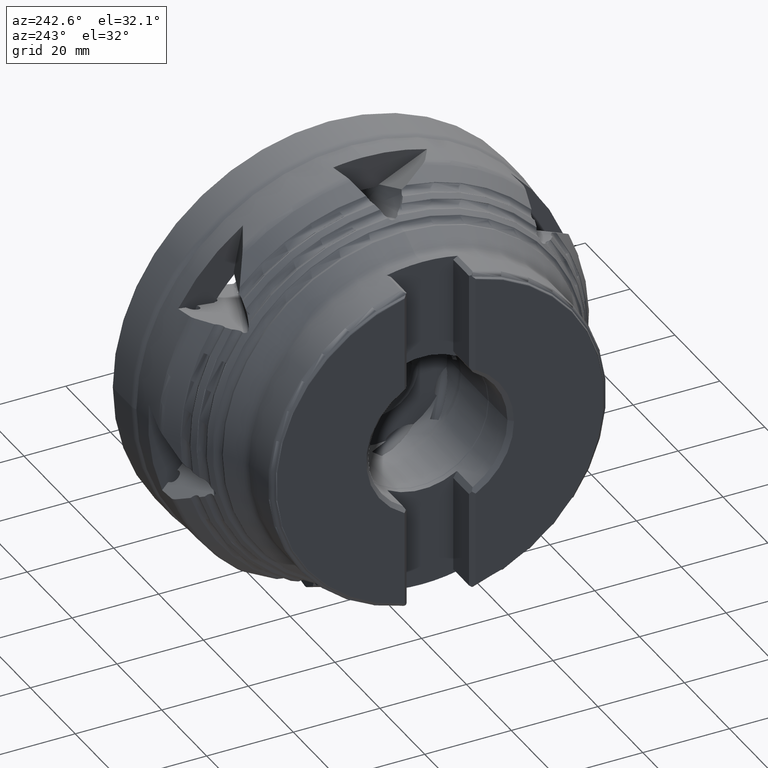
[diagram: clean part render]
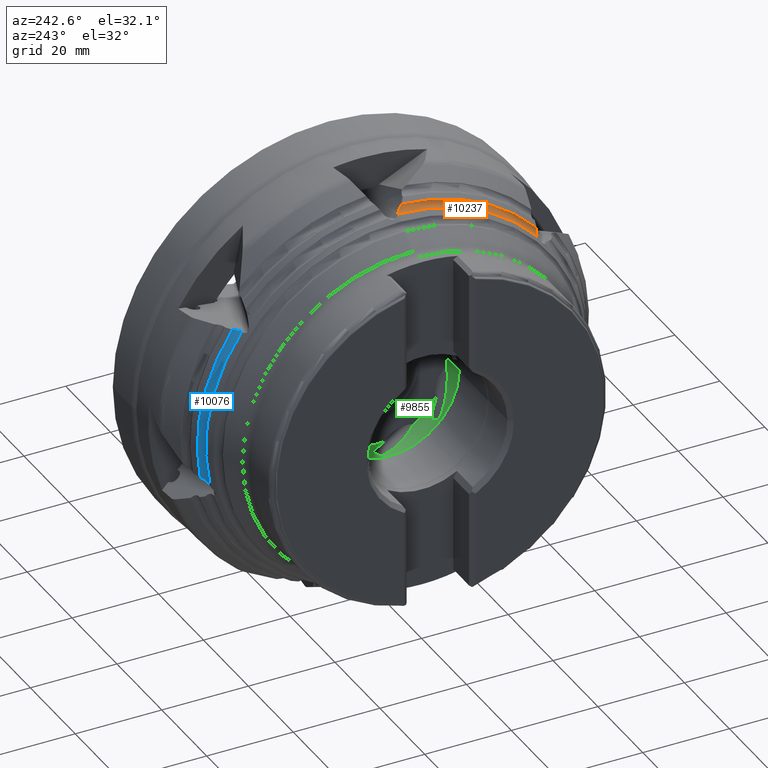
[diagram: same view with three faces highlighted in distinct colors, each labeled with its STEP entity id]
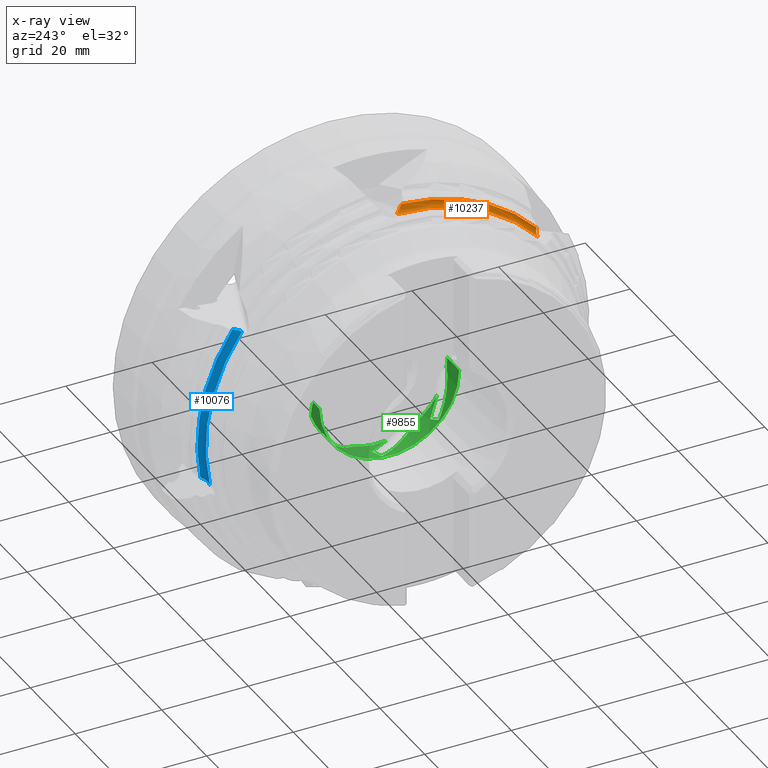
[diagram: x-ray of the same camera — body ghosted, the three highlighted faces saturated]
A machine part, auxiliary view with three faces highlighted in distinct colors.
The next image is the same camera in x-ray (body ghosted, the three faces saturated) — at least one of them is partly hidden behind the body in this view.
Their STEP definitions:

[orange] entity #10237 — the highlighted toroidal blend (fillet) surface has major radius 45.3255 mm and minor (blend) radius 1.5 mm.
#412 = DIRECTION ( 'NONE',  ( 1.000000000000000000, -0.0000000000000000000, -0.0000000000000000000 ) ) ;
#423 = CARTESIAN_POINT ( 'NONE',  ( -28.31936529679574500, 0.0000000000000000000, 0.0000000000000000000 ) ) ;
#425 = DIRECTION ( 'NONE',  ( 0.0000000000000000000, 0.0000000000000000000, -1.000000000000000000 ) ) ;
#720 = AXIS2_PLACEMENT_3D ( 'NONE', #423, #412, #425 ) ;
#916 = FACE_OUTER_BOUND ( 'NONE', #12200, .T. ) ;
#923 = TOROIDAL_SURFACE ( 'NONE', #720, 45.32546180612555300, 1.499999999999990500 ) ;
#1536 = CIRCLE ( 'NONE', #5640, 44.99870212552711000 ) ;
#1542 = CIRCLE ( 'NONE', #5642, 43.82546180612556700 ) ;
#3446 = B_SPLINE_CURVE_WITH_KNOTS ( 'NONE', 3,
 ( #5403, #5408, #5409, #5410, #5411, #5412, #5413, #5414, #5415, #5416 ),
 .UNSPECIFIED., .F., .F.,
 ( 4, 2, 2, 2, 4 ),
 ( 0.0004957884310535682100, 0.001153304637503894300, 0.001810820843954220200, 0.002468337050404546100, 0.003125853256854872100 ),
 .UNSPECIFIED. ) ;
#4848 = ORIENTED_EDGE ( 'NONE', *, *, #13280, .F. ) ;
#4888 = ORIENTED_EDGE ( 'NONE', *, *, #13119, .T. ) ;
#4889 = ORIENTED_EDGE ( 'NONE', *, *, #13125, .F. ) ;
#4920 = ORIENTED_EDGE ( 'NONE', *, *, #13113, .F. ) ;
#5338 = CARTESIAN_POINT ( 'NONE',  ( -26.85538848306705600, 0.0000000000000000000, 0.0000000000000000000 ) ) ;
#5340 = DIRECTION ( 'NONE',  ( 1.000000000000000000, -0.0000000000000000000, -0.0000000000000000000 ) ) ;
#5341 = DIRECTION ( 'NONE',  ( 0.0000000000000000000, 0.0000000000000000000, -1.000000000000000000 ) ) ;
#5372 = CARTESIAN_POINT ( 'NONE',  ( -28.31936529679574500, 0.0000000000000000000, 0.0000000000000000000 ) ) ;
#5374 = DIRECTION ( 'NONE',  ( 1.000000000000000000, -0.0000000000000000000, -0.0000000000000000000 ) ) ;
#5375 = DIRECTION ( 'NONE',  ( 0.0000000000000000000, 0.0000000000000000000, -1.000000000000000000 ) ) ;
#5403 = CARTESIAN_POINT ( 'NONE',  ( -28.31936529679584400, -0.4720116903869269200, 43.82291988770612100 ) ) ;
#5408 = CARTESIAN_POINT ( 'NONE',  ( -28.12871589166533000, -0.5858829625670970400, 43.82169339317299300 ) ) ;
#5409 = CARTESIAN_POINT ( 'NONE',  ( -27.95732435731268200, -0.7220073533651217800, 43.85442177337574800 ) ) ;
#5410 = CARTESIAN_POINT ( 'NONE',  ( -27.64188961573086100, -1.010879550474835400, 43.96526277893875800 ) ) ;
#5411 = CARTESIAN_POINT ( 'NONE',  ( -27.50212087691758700, -1.160378509105190800, 44.04229642295632600 ) ) ;
#5412 = CARTESIAN_POINT ( 'NONE',  ( -27.25103905829562100, -1.464389909434185200, 44.23624329095280000 ) ) ;
#5413 = CARTESIAN_POINT ( 'NONE',  ( -27.14096194475373700, -1.618344798882395400, 44.35349320857236700 ) ) ;
#5414 = CARTESIAN_POINT ( 'NONE',  ( -26.96406604444739900, -1.914549612997074700, 44.62097086623352000 ) ) ;
#5415 = CARTESIAN_POINT ( 'NONE',  ( -26.89490856015770600, -2.060469067801497600, 44.77443889058148600 ) ) ;
#5416 = CARTESIAN_POINT ( 'NONE',  ( -26.85538848306712700, -2.197100814788794900, 44.94503243954265100 ) ) ;
#5640 = AXIS2_PLACEMENT_3D ( 'NONE', #5338, #5340, #5341 ) ;
#5642 = AXIS2_PLACEMENT_3D ( 'NONE', #5372, #5374, #5375 ) ;
#6142 = CARTESIAN_POINT ( 'NONE',  ( -26.85538848306713400, -33.38349596373743800, 30.17325620845409900 ) ) ;
#6150 = CARTESIAN_POINT ( 'NONE',  ( -26.89166129506544000, -33.31104260516921300, 30.01105600278767600 ) ) ;
#6151 = CARTESIAN_POINT ( 'NONE',  ( -26.95319103494595600, -33.24609233546073700, 29.85625505978013900 ) ) ;
#6152 = CARTESIAN_POINT ( 'NONE',  ( -27.12593607631110300, -33.13095191198110700, 29.56120904225302200 ) ) ;
#6153 = CARTESIAN_POINT ( 'NONE',  ( -27.23506569506519200, -33.08264812950709200, 29.42555663905123400 ) ) ;
#6154 = CARTESIAN_POINT ( 'NONE',  ( -27.49360709679314900, -33.00837526324834700, 29.18758237238945700 ) ) ;
#6155 = CARTESIAN_POINT ( 'NONE',  ( -27.64295106517014500, -32.98275927974478300, 29.08601569528715200 ) ) ;
#6156 = CARTESIAN_POINT ( 'NONE',  ( -27.88523972085051700, -32.96546491501452200, 28.97162299133077600 ) ) ;
#6157 = CARTESIAN_POINT ( 'NONE',  ( -27.97069403435437000, -32.96315223725356000, 28.93914085396943700 ) ) ;
#6158 = CARTESIAN_POINT ( 'NONE',  ( -28.14344077869619200, -32.96608341341538300, 28.88927248780806800 ) ) ;
#6159 = CARTESIAN_POINT ( 'NONE',  ( -28.23086353245711100, -32.97121688145441700, 28.87161482699417500 ) ) ;
#6160 = CARTESIAN_POINT ( 'NONE',  ( -28.31936529679456900, -32.98012179098426300, 28.86143913895451600 ) ) ;
#7104 = B_SPLINE_CURVE_WITH_KNOTS ( 'NONE', 3,
 ( #6142, #6150, #6151, #6152, #6153, #6154, #6155, #6156, #6157, #6158, #6159, #6160 ),
 .UNSPECIFIED., .F., .F.,
 ( 4, 2, 2, 2, 2, 4 ),
 ( 9.870091650042058700E-007, 0.0005373037065506780300, 0.001073620403936352000, 0.001609937101322025900, 0.001878095450014867600, 0.002146253798707709200 ),
 .UNSPECIFIED. ) ;
#9583 = VERTEX_POINT ( 'NONE', #15563 ) ;
#9594 = VERTEX_POINT ( 'NONE', #15574 ) ;
#9599 = VERTEX_POINT ( 'NONE', #15579 ) ;
#9627 = VERTEX_POINT ( 'NONE', #15607 ) ;
#10237 = ADVANCED_FACE ( 'NONE', ( #916 ), #923, .F. ) ;
#12200 = EDGE_LOOP ( 'NONE', ( #4889, #4888, #4848, #4920 ) ) ;
#13113 = EDGE_CURVE ( 'NONE', #9583, #9599, #1536, .T. ) ;
#13119 = EDGE_CURVE ( 'NONE', #9627, #9594, #1542, .T. ) ;
#13125 = EDGE_CURVE ( 'NONE', #9627, #9583, #3446, .T. ) ;
#13280 = EDGE_CURVE ( 'NONE', #9599, #9594, #7104, .T. ) ;
#15563 = CARTESIAN_POINT ( 'NONE',  ( -26.85538848306712700, -2.197100814788794900, 44.94503243954265100 ) ) ;
#15574 = CARTESIAN_POINT ( 'NONE',  ( -28.31936529679456900, -32.98012179098426300, 28.86143913895451600 ) ) ;
#15579 = CARTESIAN_POINT ( 'NONE',  ( -26.85538848306713400, -33.38349596373743800, 30.17325620845409900 ) ) ;
#15607 = CARTESIAN_POINT ( 'NONE',  ( -28.31936529679584400, -0.4720116903869269200, 43.82291988770612100 ) ) ;

[blue] entity #10076 — the highlighted toroidal blend (fillet) surface has major radius 45.3255 mm and minor (blend) radius 1.5 mm.
#1537 = CIRCLE ( 'NONE', #5636, 44.99870212552711000 ) ;
#1538 = CIRCLE ( 'NONE', #5637, 43.82546180612556700 ) ;
#3441 = B_SPLINE_CURVE_WITH_KNOTS ( 'NONE', 3,
 ( #5300, #5351, #5352, #5353, #5354, #5355, #5356, #5357, #5358, #5359, #5360, #5361 ),
 .UNSPECIFIED., .F., .F.,
 ( 4, 2, 2, 2, 2, 4 ),
 ( 9.870091650047060500E-007, 0.0005373037065506840000, 0.001073620403936363300, 0.001609937101322042400, 0.001878095450014877300, 0.002146253798707712300 ),
 .UNSPECIFIED. ) ;
#3444 = B_SPLINE_CURVE_WITH_KNOTS ( 'NONE', 3,
 ( #5362, #5388, #5389, #5390, #5391, #5392, #5393, #5394, #5395, #5396 ),
 .UNSPECIFIED., .F., .F.,
 ( 4, 2, 2, 2, 4 ),
 ( 0.0004957884310556829500, 0.001153304637507110400, 0.001810820843958537700, 0.002468337050409965000, 0.003125853256861392500 ),
 .UNSPECIFIED. ) ;
#4855 = ORIENTED_EDGE ( 'NONE', *, *, #13115, .T. ) ;
#4922 = ORIENTED_EDGE ( 'NONE', *, *, #13114, .F. ) ;
#4969 = ORIENTED_EDGE ( 'NONE', *, *, #13121, .F. ) ;
#4975 = ORIENTED_EDGE ( 'NONE', *, *, #13117, .F. ) ;
#5300 = CARTESIAN_POINT ( 'NONE',  ( -26.85538848306713400, 36.84527637961322500, 25.83232086924834500 ) ) ;
#5342 = CARTESIAN_POINT ( 'NONE',  ( -26.85538848306705600, 0.0000000000000000000, 0.0000000000000000000 ) ) ;
#5343 = DIRECTION ( 'NONE',  ( 1.000000000000000000, -0.0000000000000000000, -0.0000000000000000000 ) ) ;
#5344 = DIRECTION ( 'NONE',  ( 0.0000000000000000000, 0.0000000000000000000, -1.000000000000000000 ) ) ;
#5345 = CARTESIAN_POINT ( 'NONE',  ( -28.31936529679574500, 0.0000000000000000000, 0.0000000000000000000 ) ) ;
#5346 = DIRECTION ( 'NONE',  ( 1.000000000000000000, -0.0000000000000000000, -0.0000000000000000000 ) ) ;
#5347 = DIRECTION ( 'NONE',  ( 0.0000000000000000000, 0.0000000000000000000, -1.000000000000000000 ) ) ;
#5351 = CARTESIAN_POINT ( 'NONE',  ( -26.89166129506544700, 36.67102048273052600, 25.79777700890167200 ) ) ;
#5352 = CARTESIAN_POINT ( 'NONE',  ( -26.95319103494595200, 36.50564792788416900, 25.76890162847449200 ) ) ;
#5353 = CARTESIAN_POINT ( 'NONE',  ( -27.12593607631110300, 36.19237817545007400, 25.72230193118398100 ) ) ;
#5354 = CARTESIAN_POINT ( 'NONE',  ( -27.23506569506519200, 36.04937825842436900, 25.70539472483999100 ) ) ;
#5355 = CARTESIAN_POINT ( 'NONE',  ( -27.49360709679315200, 35.80084323590730100, 25.68593829048175400 ) ) ;
#5356 = CARTESIAN_POINT ( 'NONE',  ( -27.64295106517013800, 35.69612295487927200, 25.68356526501377600 ) ) ;
#5357 = CARTESIAN_POINT ( 'NONE',  ( -27.88523972085051000, 35.58074995665028000, 25.69215927743694600 ) ) ;
#5358 = CARTESIAN_POINT ( 'NONE',  ( -27.97069403435437400, 35.54856759507408300, 25.69713253887844600 ) ) ;
#5359 = CARTESIAN_POINT ( 'NONE',  ( -28.14344077869619200, 35.50060178102558700, 25.71108697974725000 ) ) ;
#5360 = CARTESIAN_POINT ( 'NONE',  ( -28.23086353245712100, 35.48452913873676100, 25.72002094020057300 ) ) ;
#5361 = CARTESIAN_POINT ( 'NONE',  ( -28.31936529679456900, 35.47659010522662000, 25.73096688866290900 ) ) ;
#5362 = CARTESIAN_POINT ( 'NONE',  ( -28.31936529679584400, 42.82922027401579600, -9.291339690270959300 ) ) ;
#5388 = CARTESIAN_POINT ( 'NONE',  ( -28.12871589166533700, 42.85336327209762400, -9.180050487917860400 ) ) ;
#5389 = CARTESIAN_POINT ( 'NONE',  ( -27.95732435731266500, 42.91556161005242100, -9.054621769529704900 ) ) ;
#5390 = CARTESIAN_POINT ( 'NONE',  ( -27.64188961573086100, 43.08790371128498000, -8.797656645592706300 ) ) ;
#5391 = CARTESIAN_POINT ( 'NONE',  ( -27.50212087691758700, 43.19627260891467600, -8.669047536394696600 ) ) ;
#5392 = CARTESIAN_POINT ( 'NONE',  ( -27.25103905829561400, 43.45300572473929200, -8.415815574796955200 ) ) ;
#5393 = CARTESIAN_POINT ( 'NONE',  ( -27.14096194475374100, 43.60157412791474500, -8.291811217032035900 ) ) ;
#5394 = CARTESIAN_POINT ( 'NONE',  ( -26.96406604444739600, 43.92825733413280200, -8.062552254224217000 ) ) ;
#5395 = CARTESIAN_POINT ( 'NONE',  ( -26.89490856015770600, 44.11034772806249300, -7.954441152915369400 ) ) ;
#5396 = CARTESIAN_POINT ( 'NONE',  ( -26.85538848306713400, 44.30706756453061200, -7.859195684929050100 ) ) ;
#5636 = AXIS2_PLACEMENT_3D ( 'NONE', #5342, #5343, #5344 ) ;
#5637 = AXIS2_PLACEMENT_3D ( 'NONE', #5345, #5346, #5347 ) ;
#9570 = VERTEX_POINT ( 'NONE', #15550 ) ;
#9592 = VERTEX_POINT ( 'NONE', #15572 ) ;
#9597 = VERTEX_POINT ( 'NONE', #15577 ) ;
#9633 = VERTEX_POINT ( 'NONE', #15613 ) ;
#10076 = ADVANCED_FACE ( 'NONE', ( #14619 ), #14624, .F. ) ;
#12198 = EDGE_LOOP ( 'NONE', ( #4969, #4855, #4975, #4922 ) ) ;
#13114 = EDGE_CURVE ( 'NONE', #9597, #9570, #1537, .T. ) ;
#13115 = EDGE_CURVE ( 'NONE', #9633, #9592, #1538, .T. ) ;
#13117 = EDGE_CURVE ( 'NONE', #9570, #9592, #3441, .T. ) ;
#13121 = EDGE_CURVE ( 'NONE', #9633, #9597, #3444, .T. ) ;
#14619 = FACE_OUTER_BOUND ( 'NONE', #12198, .T. ) ;
#14624 = TOROIDAL_SURFACE ( 'NONE', #16364, 45.32546180612555300, 1.499999999999990500 ) ;
#15550 = CARTESIAN_POINT ( 'NONE',  ( -26.85538848306713400, 36.84527637961322500, 25.83232086924834500 ) ) ;
#15572 = CARTESIAN_POINT ( 'NONE',  ( -28.31936529679456900, 35.47659010522662000, 25.73096688866290900 ) ) ;
#15577 = CARTESIAN_POINT ( 'NONE',  ( -26.85538848306713400, 44.30706756453061200, -7.859195684929050100 ) ) ;
#15613 = CARTESIAN_POINT ( 'NONE',  ( -28.31936529679584400, 42.82922027401579600, -9.291339690270959300 ) ) ;
#16364 = AXIS2_PLACEMENT_3D ( 'NONE', #16935, #16934, #16937 ) ;
#16934 = DIRECTION ( 'NONE',  ( 1.000000000000000000, -0.0000000000000000000, -0.0000000000000000000 ) ) ;
#16935 = CARTESIAN_POINT ( 'NONE',  ( -28.31936529679574500, 0.0000000000000000000, 0.0000000000000000000 ) ) ;
#16937 = DIRECTION ( 'NONE',  ( 0.0000000000000000000, 0.0000000000000000000, -1.000000000000000000 ) ) ;

[green] entity #9855 — the highlighted cylindrical surface (partial cylindrical patch) has radius 16.15 mm, axis along (1, 0, -0).
#621 = CARTESIAN_POINT ( 'NONE',  ( -24.48548324575379500, -12.59039243937034400, -10.11456960145344500 ) ) ;
#1777 = CIRCLE ( 'NONE', #5707, 16.14999999999999900 ) ;
#1839 = CIRCLE ( 'NONE', #5745, 16.14999999999999900 ) ;
#1853 = LINE ( 'NONE', #7011, #1860 ) ;
#1860 = VECTOR ( 'NONE', #7012, 1000.000000000000000 ) ;
#1862 = CIRCLE ( 'NONE', #5762, 16.14999999999999900 ) ;
#1864 = LINE ( 'NONE', #7074, #1868 ) ;
#1866 = CIRCLE ( 'NONE', #5763, 16.14999999999999900 ) ;
#1868 = VECTOR ( 'NONE', #7075, 1000.000000000000000 ) ;
#1869 = CIRCLE ( 'NONE', #5764, 16.14999999999999900 ) ;
#2875 = CARTESIAN_POINT ( 'NONE',  ( -21.08130138960656900, -15.75787023337717200, -3.537234189030421300 ) ) ;
#2945 = CARTESIAN_POINT ( 'NONE',  ( -22.77178321478116300, 2.522666150083589200, -15.95176026321929900 ) ) ;
#2955 = CARTESIAN_POINT ( 'NONE',  ( -24.96707946596194500, -11.67697976272495100, -11.15664123385312900 ) ) ;
#2960 = CARTESIAN_POINT ( 'NONE',  ( -20.86712700921106700, -0.7065247494059466700, -16.13453819538931800 ) ) ;
#2966 = CARTESIAN_POINT ( 'NONE',  ( -20.24999999999998900, -2.022962508929285500, -16.02280008885670200 ) ) ;
#3620 = CARTESIAN_POINT ( 'NONE',  ( -25.64904181246356500, -16.15000000000000200, 1.977804580622975200E-015 ) ) ;
#3622 = CARTESIAN_POINT ( 'NONE',  ( -25.64904181246357200, 16.14999999999999500, 0.0000000000000000000 ) ) ;
#4898 = ORIENTED_EDGE ( 'NONE', *, *, #13490, .F. ) ;
#4950 = ORIENTED_EDGE ( 'NONE', *, *, #13350, .F. ) ;
#4951 = ORIENTED_EDGE ( 'NONE', *, *, #13349, .F. ) ;
#5707 = AXIS2_PLACEMENT_3D ( 'NONE', #6655, #6656, #6657 ) ;
#5745 = AXIS2_PLACEMENT_3D ( 'NONE', #6908, #6917, #6918 ) ;
#5762 = AXIS2_PLACEMENT_3D ( 'NONE', #7010, #7014, #7015 ) ;
#5763 = AXIS2_PLACEMENT_3D ( 'NONE', #7056, #7057, #7058 ) ;
#5764 = AXIS2_PLACEMENT_3D ( 'NONE', #7063, #7064, #7065 ) ;
#6257 = CARTESIAN_POINT ( 'NONE',  ( -24.48548324575379500, -12.59039243937034400, -10.11456960145344500 ) ) ;
#6301 = CARTESIAN_POINT ( 'NONE',  ( -24.23198136526149700, -12.98387597230262700, -9.624770006091965900 ) ) ;
#6302 = CARTESIAN_POINT ( 'NONE',  ( -23.94884450597830000, -13.34336024770532300, -9.118970652219262600 ) ) ;
#6303 = CARTESIAN_POINT ( 'NONE',  ( -23.37712763127176900, -13.99835412791240900, -8.077559666485690600 ) ) ;
#6304 = CARTESIAN_POINT ( 'NONE',  ( -23.08885197714042900, -14.29298062214661300, -7.543540005276397200 ) ) ;
#6305 = CARTESIAN_POINT ( 'NONE',  ( -22.52029077390740900, -14.82109560575762300, -6.444332077202105300 ) ) ;
#6306 = CARTESIAN_POINT ( 'NONE',  ( -22.24000380366882400, -15.05436916678035300, -5.879049375331744500 ) ) ;
#6307 = CARTESIAN_POINT ( 'NONE',  ( -21.67417424222118800, -15.45622531713471700, -4.722536554994497300 ) ) ;
#6308 = CARTESIAN_POINT ( 'NONE',  ( -21.38737231933260200, -15.62512295868777700, -4.128604230312139300 ) ) ;
#6309 = CARTESIAN_POINT ( 'NONE',  ( -21.08130138960656900, -15.75787023337717200, -3.537234189030421300 ) ) ;
#6351 = CARTESIAN_POINT ( 'NONE',  ( -24.96707946596194500, -11.67697976272495100, -11.15664123385312900 ) ) ;
#6354 = CARTESIAN_POINT ( 'NONE',  ( -24.83709345456234300, -12.00529714512894200, -10.81301134115329400 ) ) ;
#6355 = CARTESIAN_POINT ( 'NONE',  ( -24.66816366343214300, -12.30683739825573900, -10.46753264253842100 ) ) ;
#6356 = CARTESIAN_POINT ( 'NONE',  ( -24.48548324575379500, -12.59039243937034400, -10.11456960145344500 ) ) ;
#6357 = CARTESIAN_POINT ( 'NONE',  ( -20.24999999999998900, -2.022962508929285500, -16.02280008885670200 ) ) ;
#6384 = CARTESIAN_POINT ( 'NONE',  ( -20.45379243309832200, -1.584503119095988400, -16.07815788539672800 ) ) ;
#6385 = CARTESIAN_POINT ( 'NONE',  ( -20.65754565085205700, -1.144704806194731400, -16.11535047206762900 ) ) ;
#6386 = CARTESIAN_POINT ( 'NONE',  ( -20.86712700921106700, -0.7065247494059466700, -16.13453819538931800 ) ) ;
#6394 = CARTESIAN_POINT ( 'NONE',  ( -20.86712700921106700, -0.7065247494059466700, -16.13453819538931800 ) ) ;
#6398 = CARTESIAN_POINT ( 'NONE',  ( -21.13541054262018200, -0.1456137273996006600, -16.15910025687886900 ) ) ;
#6399 = CARTESIAN_POINT ( 'NONE',  ( -21.41265710519953600, 0.4129551462009336500, -16.15395494876697000 ) ) ;
#6400 = CARTESIAN_POINT ( 'NONE',  ( -22.02829888049490100, 1.503354137529908400, -16.08914910045706700 ) ) ;
#6401 = CARTESIAN_POINT ( 'NONE',  ( -22.36702546251841600, 2.040058699901501300, -16.02808146277742200 ) ) ;
#6402 = CARTESIAN_POINT ( 'NONE',  ( -22.77178321478116300, 2.522666150083589200, -15.95176026321929900 ) ) ;
#6429 = CARTESIAN_POINT ( 'NONE',  ( -24.96707946596206900, 13.47529338767260400, -8.901627273490319700 ) ) ;
#6444 = CARTESIAN_POINT ( 'NONE',  ( -24.84164523813970900, 13.22250957636894400, -9.284291691614605200 ) ) ;
#6445 = CARTESIAN_POINT ( 'NONE',  ( -24.67980586465593300, 12.96251644214929800, -9.642972962385432100 ) ) ;
#6446 = CARTESIAN_POINT ( 'NONE',  ( -24.32942435110702900, 12.42164978765710600, -10.33036188229074000 ) ) ;
#6447 = CARTESIAN_POINT ( 'NONE',  ( -24.13955067214466500, 12.14096889345049800, -10.65855469976543500 ) ) ;
#6448 = CARTESIAN_POINT ( 'NONE',  ( -23.74856486684012000, 11.55575874652898900, -11.29036552781367100 ) ) ;
#6449 = CARTESIAN_POINT ( 'NONE',  ( -23.54817586953909400, 11.25255658767411400, -11.59237982507066900 ) ) ;
#6450 = CARTESIAN_POINT ( 'NONE',  ( -23.14915302606601000, 10.62696954826241600, -12.16843531386911100 ) ) ;
#6451 = CARTESIAN_POINT ( 'NONE',  ( -22.95006939743150200, 10.30395407134889200, -12.44310439301745300 ) ) ;
#6452 = CARTESIAN_POINT ( 'NONE',  ( -22.35774509317449700, 9.303183588218438200, -13.22847462422988800 ) ) ;
#6453 = CARTESIAN_POINT ( 'NONE',  ( -21.97250644729074800, 8.592325192894968200, -13.70110234338732100 ) ) ;
#6454 = CARTESIAN_POINT ( 'NONE',  ( -21.36883506557511200, 7.475468004549013800, -14.32205702837660000 ) ) ;
#6455 = CARTESIAN_POINT ( 'NONE',  ( -21.16201675503608500, 7.094119492634466600, -14.51451477477634300 ) ) ;
#6456 = CARTESIAN_POINT ( 'NONE',  ( -20.72776972903224600, 6.332802827986851600, -14.86247889367109700 ) ) ;
#6457 = CARTESIAN_POINT ( 'NONE',  ( -20.50007314066409600, 5.951746232194555100, -15.01859229948847800 ) ) ;
#6458 = CARTESIAN_POINT ( 'NONE',  ( -20.24999999999998900, 5.577654066108839200, -15.15626191113162200 ) ) ;
#6538 = CARTESIAN_POINT ( 'NONE',  ( -21.90506687844372300, 16.03124950238592600, -1.954875799699524500 ) ) ;
#6554 = CARTESIAN_POINT ( 'NONE',  ( -22.81144578818080900, 16.14999999999999500, -1.765794352093071900E-014 ) ) ;
#6555 = CARTESIAN_POINT ( 'NONE',  ( -21.65309534300066500, 15.96535779948926300, -2.495230501228824100 ) ) ;
#6556 = CARTESIAN_POINT ( 'NONE',  ( -21.39745723705382800, 15.87148013474488900, -3.034912851316548600 ) ) ;
#6557 = CARTESIAN_POINT ( 'NONE',  ( -20.85605537405643200, 15.63308019336133000, -4.089178566732139900 ) ) ;
#6558 = CARTESIAN_POINT ( 'NONE',  ( -20.57188204097125000, 15.48892995964395200, -4.602043482784312200 ) ) ;
#6559 = CARTESIAN_POINT ( 'NONE',  ( -20.24999999999999300, 15.32725314716839700, -5.088989188690983500 ) ) ;
#6560 = CARTESIAN_POINT ( 'NONE',  ( -22.50741443836682600, 16.14999999999998400, -0.6519973337299267400 ) ) ;
#6561 = CARTESIAN_POINT ( 'NONE',  ( -22.20812844209555000, 16.11050148010005500, -1.304958179107971800 ) ) ;
#6562 = CARTESIAN_POINT ( 'NONE',  ( -21.90506687844372300, 16.03124950238592600, -1.954875799699524500 ) ) ;
#6655 = CARTESIAN_POINT ( 'NONE',  ( -25.64904181246356900, -3.140997957299871000E-015, 0.0000000000000000000 ) ) ;
#6656 = DIRECTION ( 'NONE',  ( 1.000000000000000000, 1.224606353822377300E-016, -0.0000000000000000000 ) ) ;
#6657 = DIRECTION ( 'NONE',  ( -2.148264366534745800E-016, 1.000000000000000000, 0.0000000000000000000 ) ) ;
#6908 = CARTESIAN_POINT ( 'NONE',  ( -20.24999999999998900, -2.479827866490312800E-015, 0.0000000000000000000 ) ) ;
#6917 = DIRECTION ( 'NONE',  ( 1.000000000000000000, 1.224606353822377300E-016, -0.0000000000000000000 ) ) ;
#6918 = DIRECTION ( 'NONE',  ( -2.148264366534745800E-016, 1.000000000000000000, 0.0000000000000000000 ) ) ;
#7010 = CARTESIAN_POINT ( 'NONE',  ( -20.24999999999998900, -2.479827866490312800E-015, 0.0000000000000000000 ) ) ;
#7011 = CARTESIAN_POINT ( 'NONE',  ( 1.977739261423138800E-015, -16.14999999999999900, 1.977804580622975200E-015 ) ) ;
#7012 = DIRECTION ( 'NONE',  ( 1.000000000000000000, 1.224606353822377300E-016, -0.0000000000000000000 ) ) ;
#7013 = CARTESIAN_POINT ( 'NONE',  ( -21.08130138960656900, -15.75787023337717200, -3.537234189030421300 ) ) ;
#7014 = DIRECTION ( 'NONE',  ( 1.000000000000000000, 1.224606353822377300E-016, -0.0000000000000000000 ) ) ;
#7015 = DIRECTION ( 'NONE',  ( -2.148264366534745800E-016, 1.000000000000000000, 0.0000000000000000000 ) ) ;
#7017 = CARTESIAN_POINT ( 'NONE',  ( -24.96707946596194500, -11.67697976272495100, -11.15664123385312900 ) ) ;
#7018 = CARTESIAN_POINT ( 'NONE',  ( -20.82343181029812500, -15.86971190324480800, -3.038995614405125300 ) ) ;
#7019 = CARTESIAN_POINT ( 'NONE',  ( -20.55298060182063600, -15.95564837132412000, -2.544215152302137000 ) ) ;
#7020 = CARTESIAN_POINT ( 'NONE',  ( -20.24999999999998600, -16.01740757357622500, -2.065225077792240500 ) ) ;
#7021 = CARTESIAN_POINT ( 'NONE',  ( -24.96707946596221800, 1.442135556657416100, -16.08548243094450200 ) ) ;
#7022 = CARTESIAN_POINT ( 'NONE',  ( -24.22651436593921700, -11.42617150059255600, -11.41914703106004900 ) ) ;
#7023 = CARTESIAN_POINT ( 'NONE',  ( -23.49447161128741600, -11.16665718038376600, -11.67304936568439500 ) ) ;
#7024 = CARTESIAN_POINT ( 'NONE',  ( -22.77178321478143600, -10.89873175649613100, -11.91805966170427800 ) ) ;
#7025 = CARTESIAN_POINT ( 'NONE',  ( -20.24999999999998900, -13.78842604061962100, -8.408436675289982200 ) ) ;
#7026 = CARTESIAN_POINT ( 'NONE',  ( -24.84164523813978000, 0.9853483389247049700, -16.12643545124393900 ) ) ;
#7027 = CARTESIAN_POINT ( 'NONE',  ( -24.67980586465592900, 0.5428169615252476100, -16.14679874812862800 ) ) ;
#7028 = CARTESIAN_POINT ( 'NONE',  ( -24.32942435110702600, -0.3318301799977562700, -16.15251215130111700 ) ) ;
#7029 = CARTESIAN_POINT ( 'NONE',  ( -24.13955067214465100, -0.7634233321337710000, -16.13769186642186100 ) ) ;
#7030 = CARTESIAN_POINT ( 'NONE',  ( -23.74856486684010200, -1.622265487015891500, -16.07408375769086800 ) ) ;
#7031 = CARTESIAN_POINT ( 'NONE',  ( -23.54817586953907200, -2.047433226714429700, -16.02533359870112800 ) ) ;
#7032 = CARTESIAN_POINT ( 'NONE',  ( -23.14915302606599200, -2.887858682753753100, -15.89539467883567200 ) ) ;
#7033 = CARTESIAN_POINT ( 'NONE',  ( -22.95006939743148800, -3.304000471790548200, -15.81410437939517000 ) ) ;
#7034 = CARTESIAN_POINT ( 'NONE',  ( -22.35774509317448300, -4.541997834178698000, -15.52134083880342400 ) ) ;
#7035 = CARTESIAN_POINT ( 'NONE',  ( -21.97250644729073700, -5.354726024552885400, -15.26024792873324500 ) ) ;
#7036 = CARTESIAN_POINT ( 'NONE',  ( -21.36883506557508700, -6.536557013529845900, -14.77421273097086600 ) ) ;
#7037 = CARTESIAN_POINT ( 'NONE',  ( -21.16201675503606700, -6.924793446842731000, -14.59605790073267800 ) ) ;
#7038 = CARTESIAN_POINT ( 'NONE',  ( -20.72776972903223200, -7.671515926156788000, -14.21778864372725500 ) ) ;
#7039 = CARTESIAN_POINT ( 'NONE',  ( -20.50007314066406000, -8.031155203067625000, -14.01720171699531300 ) ) ;
#7040 = CARTESIAN_POINT ( 'NONE',  ( -20.24999999999998900, -8.372032290139083300, -13.81056028309019400 ) ) ;
#7041 = CARTESIAN_POINT ( 'NONE',  ( -24.96707946596221800, 1.442135556657416100, -16.08548243094450200 ) ) ;
#7042 = CARTESIAN_POINT ( 'NONE',  ( -20.61276938992816500, -13.37883655548803200, -9.080094742163327100 ) ) ;
#7043 = CARTESIAN_POINT ( 'NONE',  ( -20.97340207892283800, -12.92063660505741000, -9.719743408332627500 ) ) ;
#7044 = CARTESIAN_POINT ( 'NONE',  ( -21.57231789421339800, -12.18256369120256000, -10.60924514094839700 ) ) ;
#7045 = CARTESIAN_POINT ( 'NONE',  ( -21.78198744976440100, -11.92825357376358400, -10.89398020658871100 ) ) ;
#7046 = CARTESIAN_POINT ( 'NONE',  ( -22.24129431949196300, -11.41181339847457300, -11.43383369740641200 ) ) ;
#7047 = CARTESIAN_POINT ( 'NONE',  ( -22.49035580514111700, -11.14943628624872200, -11.68879739104357900 ) ) ;
#7048 = CARTESIAN_POINT ( 'NONE',  ( -22.77178321478143600, -10.89873175649613100, -11.91805966170427800 ) ) ;
#7049 = CARTESIAN_POINT ( 'NONE',  ( -24.96707946596206900, 13.47529338767260400, -8.901627273490319700 ) ) ;
#7050 = CARTESIAN_POINT ( 'NONE',  ( -24.22651436593928800, 1.803747246905713600, -16.05306232303360800 ) ) ;
#7051 = CARTESIAN_POINT ( 'NONE',  ( -23.49447161128732000, 2.164060617673725200, -16.00847137364947400 ) ) ;
#7052 = CARTESIAN_POINT ( 'NONE',  ( -22.77178321478116300, 2.522666150083589200, -15.95176026321929900 ) ) ;
#7053 = CARTESIAN_POINT ( 'NONE',  ( -24.22651436593923100, 13.67540752774554100, -8.598694262968161100 ) ) ;
#7054 = CARTESIAN_POINT ( 'NONE',  ( -23.49447161128734900, 13.86519663183106300, -8.289187923951386600 ) ) ;
#7055 = CARTESIAN_POINT ( 'NONE',  ( -22.77178321478129400, 14.04444499263867900, -7.973460029920888200 ) ) ;
#7056 = CARTESIAN_POINT ( 'NONE',  ( -20.24999999999998900, -2.479827866490312800E-015, 0.0000000000000000000 ) ) ;
#7057 = DIRECTION ( 'NONE',  ( 1.000000000000000000, 1.224606353822377300E-016, -0.0000000000000000000 ) ) ;
#7058 = DIRECTION ( 'NONE',  ( -2.148264366534745800E-016, 1.000000000000000000, 0.0000000000000000000 ) ) ;
#7059 = CARTESIAN_POINT ( 'NONE',  ( -20.24999999999998900, 11.26583305289973300, -11.57166822995679900 ) ) ;
#7063 = CARTESIAN_POINT ( 'NONE',  ( -20.24999999999998900, -2.479827866490312800E-015, 0.0000000000000000000 ) ) ;
#7064 = DIRECTION ( 'NONE',  ( 1.000000000000000000, 1.224606353822377300E-016, -0.0000000000000000000 ) ) ;
#7065 = DIRECTION ( 'NONE',  ( -2.148264366534745800E-016, 1.000000000000000000, 0.0000000000000000000 ) ) ;
#7067 = CARTESIAN_POINT ( 'NONE',  ( -20.61276938992811800, 11.82950901496649500, -11.02289002802583600 ) ) ;
#7068 = CARTESIAN_POINT ( 'NONE',  ( -20.97340207892280300, 12.35116127269627000, -10.43384288839078300 ) ) ;
#7069 = CARTESIAN_POINT ( 'NONE',  ( -21.57231789421335900, 13.05412466563864600, -9.516342247150870300 ) ) ;
#7070 = CARTESIAN_POINT ( 'NONE',  ( -21.78198744976436500, 13.27513150386125500, -9.205048702572968400 ) ) ;
#7071 = CARTESIAN_POINT ( 'NONE',  ( -22.24129431949193100, 13.68653099041036800, -8.581428057735298200 ) ) ;
#7072 = CARTESIAN_POINT ( 'NONE',  ( -22.49035580514116000, 13.87671781186901800, -8.268894528275465600 ) ) ;
#7073 = CARTESIAN_POINT ( 'NONE',  ( -22.77178321478129400, 14.04444499263867900, -7.973460029920888200 ) ) ;
#7074 = CARTESIAN_POINT ( 'NONE',  ( -1.977739261423138800E-015, 16.14999999999999900, 0.0000000000000000000 ) ) ;
#7075 = DIRECTION ( 'NONE',  ( 1.000000000000000000, 1.224606353822377300E-016, -0.0000000000000000000 ) ) ;
#7113 = B_SPLINE_CURVE_WITH_KNOTS ( 'NONE', 3,
 ( #6257, #6301, #6302, #6303, #6304, #6305, #6306, #6307, #6308, #6309 ),
 .UNSPECIFIED., .F., .F.,
 ( 4, 2, 2, 2, 4 ),
 ( 0.001464594792848068700, 0.003496983041488465000, 0.005529371290128861000, 0.007561759538769257000, 0.009594147787409652200 ),
 .UNSPECIFIED. ) ;
#7115 = B_SPLINE_CURVE_WITH_KNOTS ( 'NONE', 3,
 ( #6351, #6354, #6355, #6356 ),
 .UNSPECIFIED., .F., .F.,
 ( 4, 4 ),
 ( 4.997689862953879900E-017, 0.001464594792848068700 ),
 .UNSPECIFIED. ) ;
#7117 = B_SPLINE_CURVE_WITH_KNOTS ( 'NONE', 3,
 ( #6357, #6384, #6385, #6386 ),
 .UNSPECIFIED., .F., .F.,
 ( 4, 4 ),
 ( 0.02445421094437207800, 0.02592865882047122200 ),
 .UNSPECIFIED. ) ;
#7118 = B_SPLINE_CURVE_WITH_KNOTS ( 'NONE', 3,
 ( #6394, #6398, #6399, #6400, #6401, #6402 ),
 .UNSPECIFIED., .F., .F.,
 ( 4, 2, 4 ),
 ( 0.02592865882047122200, 0.02781608854771792200, 0.02970351827496462600 ),
 .UNSPECIFIED. ) ;
#7121 = B_SPLINE_CURVE_WITH_KNOTS ( 'NONE', 3,
 ( #6429, #6444, #6445, #6446, #6447, #6448, #6449, #6450, #6451, #6452, #6453, #6454, #6455, #6456, #6457, #6458 ),
 .UNSPECIFIED., .F., .F.,
 ( 4, 2, 2, 2, 2, 2, 2, 4 ),
 ( 3.029564307160423900E-017, 0.001413308362455151700, 0.002826616724910273000, 0.004239925087365393900, 0.005653233449820515600, 0.008479850174730751300, 0.009893158537185867800, 0.01130646689964098300 ),
 .UNSPECIFIED. ) ;
#7130 = B_SPLINE_CURVE_WITH_KNOTS ( 'NONE', 3,
 ( #6538, #6555, #6556, #6557, #6558, #6559 ),
 .UNSPECIFIED., .F., .F.,
 ( 4, 2, 4 ),
 ( 0.007686223339380179200, 0.009493093333152697500, 0.01129996332692521600 ),
 .UNSPECIFIED. ) ;
#7131 = B_SPLINE_CURVE_WITH_KNOTS ( 'NONE', 3,
 ( #6554, #6560, #6561, #6562 ),
 .UNSPECIFIED., .F., .F.,
 ( 4, 4 ),
 ( 0.005512990380089651300, 0.007686223339380179200 ),
 .UNSPECIFIED. ) ;
#7167 = B_SPLINE_CURVE_WITH_KNOTS ( 'NONE', 3,
 ( #7013, #7018, #7019, #7020 ),
 .UNSPECIFIED., .F., .F.,
 ( 4, 4 ),
 ( 0.009594147787409652200, 0.01130646689964111600 ),
 .UNSPECIFIED. ) ;
#7168 = B_SPLINE_CURVE_WITH_KNOTS ( 'NONE', 3,
 ( #7021, #7026, #7027, #7028, #7029, #7030, #7031, #7032, #7033, #7034, #7035, #7036, #7037, #7038, #7039, #7040 ),
 .UNSPECIFIED., .F., .F.,
 ( 4, 2, 2, 2, 2, 2, 2, 4 ),
 ( 7.181969932691307600E-018, 0.001413308362455137100, 0.002826616724910267300, 0.004239925087365396500, 0.005653233449820526900, 0.008479850174730786000, 0.009893158537185916400, 0.01130646689964104900 ),
 .UNSPECIFIED. ) ;
#7169 = B_SPLINE_CURVE_WITH_KNOTS ( 'NONE', 3,
 ( #7025, #7042, #7043, #7044, #7045, #7046, #7047, #7048 ),
 .UNSPECIFIED., .F., .F.,
 ( 4, 2, 2, 4 ),
 ( 0.02445421094437214000, 0.02707886460966837900, 0.02839119144231649600, 0.02970351827496461200 ),
 .UNSPECIFIED. ) ;
#7170 = B_SPLINE_CURVE_WITH_KNOTS ( 'NONE', 3,
 ( #7059, #7067, #7068, #7069, #7070, #7071, #7072, #7073 ),
 .UNSPECIFIED., .F., .F.,
 ( 4, 2, 2, 4 ),
 ( 0.02445421094437191800, 0.02707886460966819900, 0.02839119144231634300, 0.02970351827496448700 ),
 .UNSPECIFIED. ) ;
#8503 = ORIENTED_EDGE ( 'NONE', *, *, #13483, .F. ) ;
#8542 = ORIENTED_EDGE ( 'NONE', *, *, #13449, .T. ) ;
#8608 = ORIENTED_EDGE ( 'NONE', *, *, #13318, .F. ) ;
#8722 = ORIENTED_EDGE ( 'NONE', *, *, #13485, .T. ) ;
#8739 = ORIENTED_EDGE ( 'NONE', *, *, #13489, .F. ) ;
#8742 = ORIENTED_EDGE ( 'NONE', *, *, #13326, .F. ) ;
#8748 = ORIENTED_EDGE ( 'NONE', *, *, #13486, .T. ) ;
#8750 = ORIENTED_EDGE ( 'NONE', *, *, #13488, .T. ) ;
#9005 = EDGE_LOOP ( 'NONE', ( #14082, #14083, #14084, #14085, #14086, #14087, #14088, #8503, #8542, #9076, #9070, #8608, #9075, #8748, #8742, #8722, #8739, #8750, #4951, #4950, #4898 ) ) ;
#9070 = ORIENTED_EDGE ( 'NONE', *, *, #13484, .T. ) ;
#9075 = ORIENTED_EDGE ( 'NONE', *, *, #13313, .F. ) ;
#9076 = ORIENTED_EDGE ( 'NONE', *, *, #13482, .F. ) ;
#9801 = VERTEX_POINT ( 'NONE', #15781 ) ;
#9802 = VERTEX_POINT ( 'NONE', #15782 ) ;
#9816 = VERTEX_POINT ( 'NONE', #15796 ) ;
#9821 = VERTEX_POINT ( 'NONE', #15801 ) ;
#9825 = VERTEX_POINT ( 'NONE', #15805 ) ;
#9826 = VERTEX_POINT ( 'NONE', #15806 ) ;
#9827 = VERTEX_POINT ( 'NONE', #15807 ) ;
#9829 = VERTEX_POINT ( 'NONE', #15809 ) ;
#9830 = VERTEX_POINT ( 'NONE', #15810 ) ;
#9831 = VERTEX_POINT ( 'NONE', #15811 ) ;
#9832 = VERTEX_POINT ( 'NONE', #15812 ) ;
#9833 = VERTEX_POINT ( 'NONE', #15813 ) ;
#9840 = VERTEX_POINT ( 'NONE', #15820 ) ;
#9855 = ADVANCED_FACE ( 'NONE', ( #14282 ), #14284, .F. ) ;
#10305 = VERTEX_POINT ( 'NONE', #621 ) ;
#10659 = VERTEX_POINT ( 'NONE', #2875 ) ;
#10729 = VERTEX_POINT ( 'NONE', #2945 ) ;
#10739 = VERTEX_POINT ( 'NONE', #2955 ) ;
#10744 = VERTEX_POINT ( 'NONE', #2960 ) ;
#10750 = VERTEX_POINT ( 'NONE', #2966 ) ;
#12546 = VERTEX_POINT ( 'NONE', #3620 ) ;
#12548 = VERTEX_POINT ( 'NONE', #3622 ) ;
#13302 = EDGE_CURVE ( 'NONE', #10305, #10659, #7113, .T. ) ;
#13311 = EDGE_CURVE ( 'NONE', #10739, #10305, #7115, .T. ) ;
#13313 = EDGE_CURVE ( 'NONE', #10750, #10744, #7117, .T. ) ;
#13318 = EDGE_CURVE ( 'NONE', #10744, #10729, #7118, .T. ) ;
#13326 = EDGE_CURVE ( 'NONE', #9840, #9816, #7121, .T. ) ;
#13349 = EDGE_CURVE ( 'NONE', #9821, #9801, #7130, .T. ) ;
#13350 = EDGE_CURVE ( 'NONE', #9802, #9821, #7131, .T. ) ;
#13377 = EDGE_CURVE ( 'NONE', #12546, #12548, #1777, .T. ) ;
#13449 = EDGE_CURVE ( 'NONE', #9829, #9827, #1839, .T. ) ;
#13478 = EDGE_CURVE ( 'NONE', #12546, #9833, #1853, .T. ) ;
#13479 = EDGE_CURVE ( 'NONE', #9833, #9826, #1862, .T. ) ;
#13480 = EDGE_CURVE ( 'NONE', #10659, #9826, #7167, .T. ) ;
#13481 = EDGE_CURVE ( 'NONE', #10739, #9832, #15192, .T. ) ;
#13482 = EDGE_CURVE ( 'NONE', #9831, #9827, #7168, .T. ) ;
#13483 = EDGE_CURVE ( 'NONE', #9829, #9832, #7169, .T. ) ;
#13484 = EDGE_CURVE ( 'NONE', #9831, #10729, #15183, .T. ) ;
#13485 = EDGE_CURVE ( 'NONE', #9840, #9830, #15182, .T. ) ;
#13486 = EDGE_CURVE ( 'NONE', #10750, #9816, #1866, .T. ) ;
#13488 = EDGE_CURVE ( 'NONE', #9825, #9801, #1869, .T. ) ;
#13489 = EDGE_CURVE ( 'NONE', #9825, #9830, #7170, .T. ) ;
#13490 = EDGE_CURVE ( 'NONE', #12548, #9802, #1864, .T. ) ;
#14082 = ORIENTED_EDGE ( 'NONE', *, *, #13377, .F. ) ;
#14083 = ORIENTED_EDGE ( 'NONE', *, *, #13478, .T. ) ;
#14084 = ORIENTED_EDGE ( 'NONE', *, *, #13479, .T. ) ;
#14085 = ORIENTED_EDGE ( 'NONE', *, *, #13480, .F. ) ;
#14086 = ORIENTED_EDGE ( 'NONE', *, *, #13302, .F. ) ;
#14087 = ORIENTED_EDGE ( 'NONE', *, *, #13311, .F. ) ;
#14088 = ORIENTED_EDGE ( 'NONE', *, *, #13481, .T. ) ;
#14282 = FACE_OUTER_BOUND ( 'NONE', #9005, .T. ) ;
#14284 = CYLINDRICAL_SURFACE ( 'NONE', #15082, 16.14999999999999900 ) ;
#15082 = AXIS2_PLACEMENT_3D ( 'NONE', #15857, #15856, #15845 ) ;
#15182 =( BOUNDED_CURVE ( )  B_SPLINE_CURVE ( 3, ( #7049, #7053, #7054, #7055 ),
 .UNSPECIFIED., .F., .T. ) 
 B_SPLINE_CURVE_WITH_KNOTS ( ( 4, 4 ),
 ( 5.026203875111428400, 5.093632971316870000 ),
 .UNSPECIFIED. ) 
 CURVE ( )  GEOMETRIC_REPRESENTATION_ITEM ( )  RATIONAL_B_SPLINE_CURVE ( ( 1.000000000000000000, 0.9996211456368389000, 0.9996211456368389000, 1.000000000000000000 ) ) 
 REPRESENTATION_ITEM ( '' )  );
#15183 =( BOUNDED_CURVE ( )  B_SPLINE_CURVE ( 3, ( #7041, #7050, #7051, #7052 ),
 .UNSPECIFIED., .F., .T. ) 
 B_SPLINE_CURVE_WITH_KNOTS ( ( 4, 4 ),
 ( 5.026203875111424900, 5.093632971316874400 ),
 .UNSPECIFIED. ) 
 CURVE ( )  GEOMETRIC_REPRESENTATION_ITEM ( )  RATIONAL_B_SPLINE_CURVE ( ( 1.000000000000000000, 0.9996211456368389000, 0.9996211456368389000, 1.000000000000000000 ) ) 
 REPRESENTATION_ITEM ( '' )  );
#15192 =( BOUNDED_CURVE ( )  B_SPLINE_CURVE ( 3, ( #7017, #7022, #7023, #7024 ),
 .UNSPECIFIED., .F., .T. ) 
 B_SPLINE_CURVE_WITH_KNOTS ( ( 4, 4 ),
 ( 5.026203875111432900, 5.093632971316866400 ),
 .UNSPECIFIED. ) 
 CURVE ( )  GEOMETRIC_REPRESENTATION_ITEM ( )  RATIONAL_B_SPLINE_CURVE ( ( 1.000000000000000000, 0.9996211456368390100, 0.9996211456368390100, 1.000000000000000000 ) ) 
 REPRESENTATION_ITEM ( '' )  );
#15781 = CARTESIAN_POINT ( 'NONE',  ( -20.24999999999999300, 15.32725314716839700, -5.088989188690983500 ) ) ;
#15782 = CARTESIAN_POINT ( 'NONE',  ( -22.81144578818080900, 16.14999999999999500, -1.765794352093071900E-014 ) ) ;
#15796 = CARTESIAN_POINT ( 'NONE',  ( -20.24999999999998900, 5.577654066108839200, -15.15626191113162200 ) ) ;
#15801 = CARTESIAN_POINT ( 'NONE',  ( -21.90506687844372300, 16.03124950238592600, -1.954875799699524500 ) ) ;
#15805 = CARTESIAN_POINT ( 'NONE',  ( -20.24999999999998900, 11.26583305289973300, -11.57166822995679900 ) ) ;
#15806 = CARTESIAN_POINT ( 'NONE',  ( -20.24999999999998600, -16.01740757357622500, -2.065225077792240500 ) ) ;
#15807 = CARTESIAN_POINT ( 'NONE',  ( -20.24999999999998900, -8.372032290139083300, -13.81056028309019400 ) ) ;
#15809 = CARTESIAN_POINT ( 'NONE',  ( -20.24999999999998900, -13.78842604061962100, -8.408436675289982200 ) ) ;
#15810 = CARTESIAN_POINT ( 'NONE',  ( -22.77178321478129400, 14.04444499263867900, -7.973460029920888200 ) ) ;
#15811 = CARTESIAN_POINT ( 'NONE',  ( -24.96707946596221800, 1.442135556657416100, -16.08548243094450200 ) ) ;
#15812 = CARTESIAN_POINT ( 'NONE',  ( -22.77178321478143600, -10.89873175649613100, -11.91805966170427800 ) ) ;
#15813 = CARTESIAN_POINT ( 'NONE',  ( -20.24999999999998600, -16.15000000000000200, 1.977804580622975200E-015 ) ) ;
#15820 = CARTESIAN_POINT ( 'NONE',  ( -24.96707946596206900, 13.47529338767260400, -8.901627273490319700 ) ) ;
#15845 = DIRECTION ( 'NONE',  ( -1.224606353822377000E-016, 1.000000000000000000, 0.0000000000000000000 ) ) ;
#15856 = DIRECTION ( 'NONE',  ( 1.000000000000000000, 1.224606353822377300E-016, -0.0000000000000000000 ) ) ;
#15857 = CARTESIAN_POINT ( 'NONE',  ( 0.0000000000000000000, 0.0000000000000000000, 0.0000000000000000000 ) ) ;